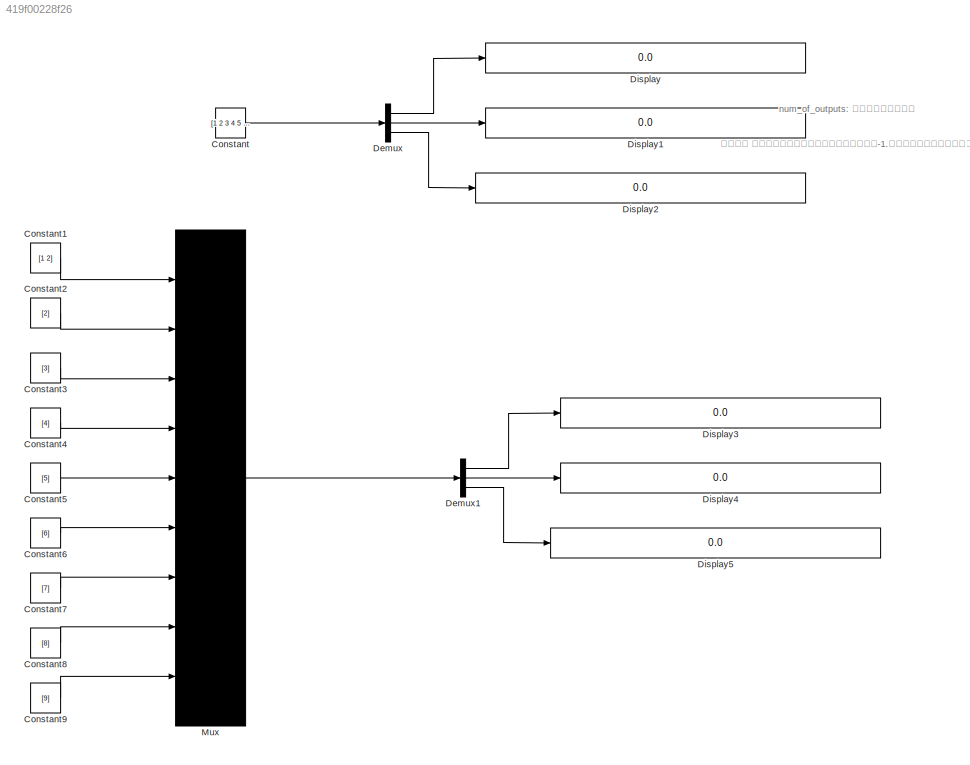
MODEL slx_419f00228f26
KIND model
CONFIG AbsTol = auto
CONFIG EnableMultiTasking = off
CONFIG FixedStep = auto
CONFIG MaxStep = auto
CONFIG MinStep = auto
CONFIG RelTol = 1e-3
CONFIG SampleTimeConstraint = Unconstrained
CONFIG Solver = VariableStepAuto
CONFIG SolverName = VariableStepAuto
CONFIG StartTime = 0.0
CONFIG StopTime = 10.0
BLOCK [Constant] Constant
  Value = [1 2 3 4 5 6 7 8 9]
  VectorParams1D = off
BLOCK [Constant] Constant1
  Value = [1 2]
  VectorParams1D = off
BLOCK [Constant] Constant2
  Value = [2]
  VectorParams1D = off
BLOCK [Constant] Constant3
  Value = [3]
  VectorParams1D = off
BLOCK [Constant] Constant4
  Value = [4]
  VectorParams1D = off
BLOCK [Constant] Constant5
  Value = [5]
  VectorParams1D = off
BLOCK [Constant] Constant6
  Value = [6]
  VectorParams1D = off
BLOCK [Constant] Constant7
  Value = [7]
  VectorParams1D = off
BLOCK [Constant] Constant8
  Value = [8]
  VectorParams1D = off
BLOCK [Constant] Constant9
  Value = [9]
  VectorParams1D = off
BLOCK [Demux] Demux
  Outputs = 3
  Ports = [1, 3]
BLOCK [Demux] Demux1
  Outputs = 3
  Ports = [1, 3]
BLOCK [Display] Display
  Decimation = 1
  Ports = [1]
BLOCK [Display] Display1
  Decimation = 1
  Ports = [1]
BLOCK [Display] Display2
  Decimation = 1
  Ports = [1]
BLOCK [Display] Display3
  Decimation = 1
  Ports = [1]
BLOCK [Display] Display4
  Decimation = 1
  Ports = [1]
BLOCK [Display] Display5
  Decimation = 1
  Ports = [1]
BLOCK [Mux] Mux
  DisplayOption = bar
  Inputs = 9
  Ports = [9, 1]
ANNOTATION (root): num_of_outputs: 单数字对应均匀分配 如果矩阵 从上到下每一路对应的输出个数，如果取-1.则采用系统默认分配的方式
LINE Constant1:1 -> Mux:1
LINE Constant2:1 -> Mux:2
LINE Constant3:1 -> Mux:3
LINE Constant4:1 -> Mux:4
LINE Constant5:1 -> Mux:5
LINE Constant6:1 -> Mux:6
LINE Constant7:1 -> Mux:7
LINE Constant8:1 -> Mux:8
LINE Constant9:1 -> Mux:9
LINE Constant:1 -> Demux:1
LINE Demux1:1 -> Display3:1
LINE Demux1:2 -> Display4:1
LINE Demux1:3 -> Display5:1
LINE Demux:1 -> Display:1
LINE Demux:2 -> Display1:1
LINE Demux:3 -> Display2:1
LINE Mux:1 -> Demux1:1
